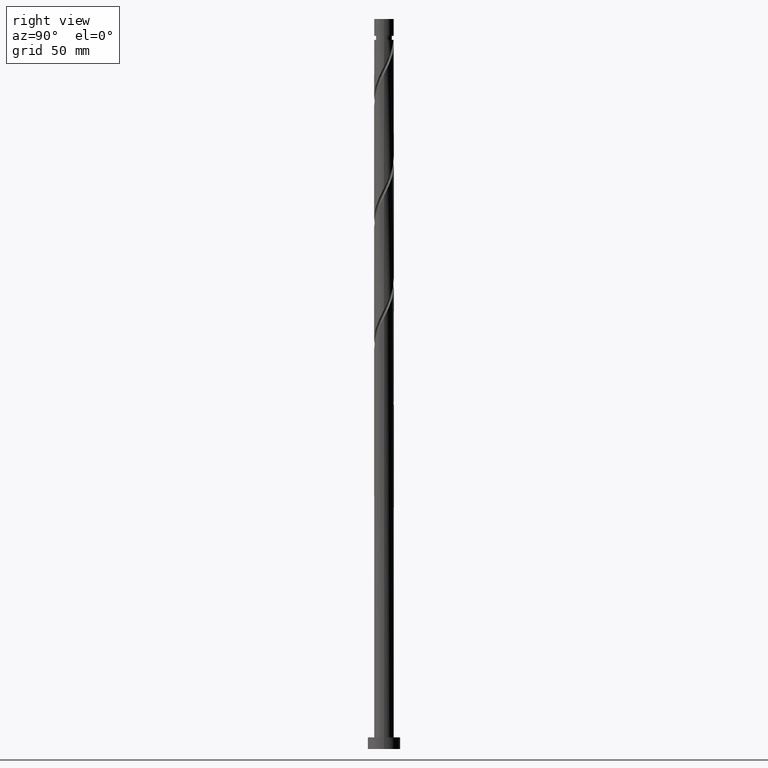
[diagram: clean part render]
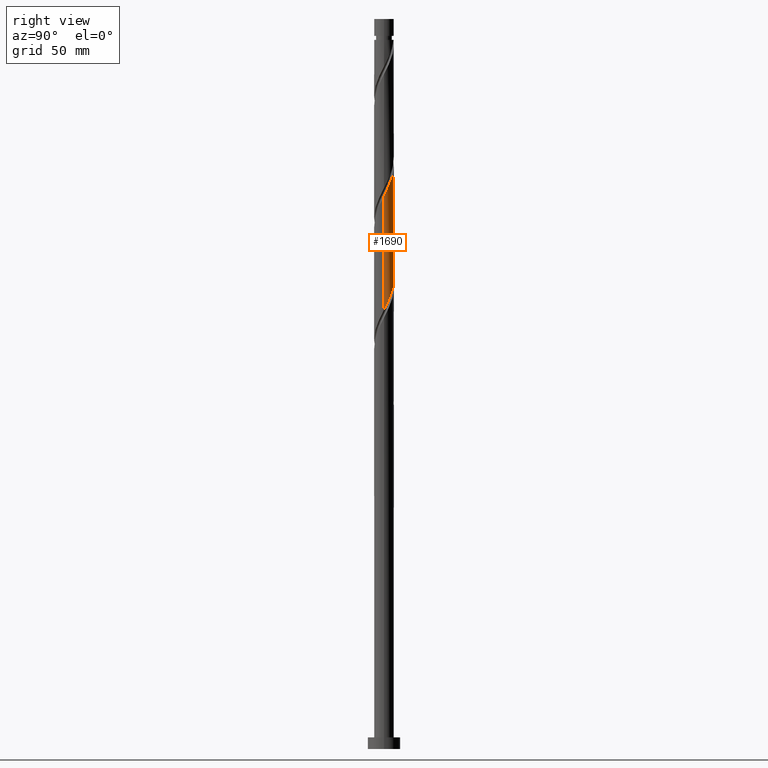
[diagram: same view with one face highlighted and labeled with its STEP entity id]
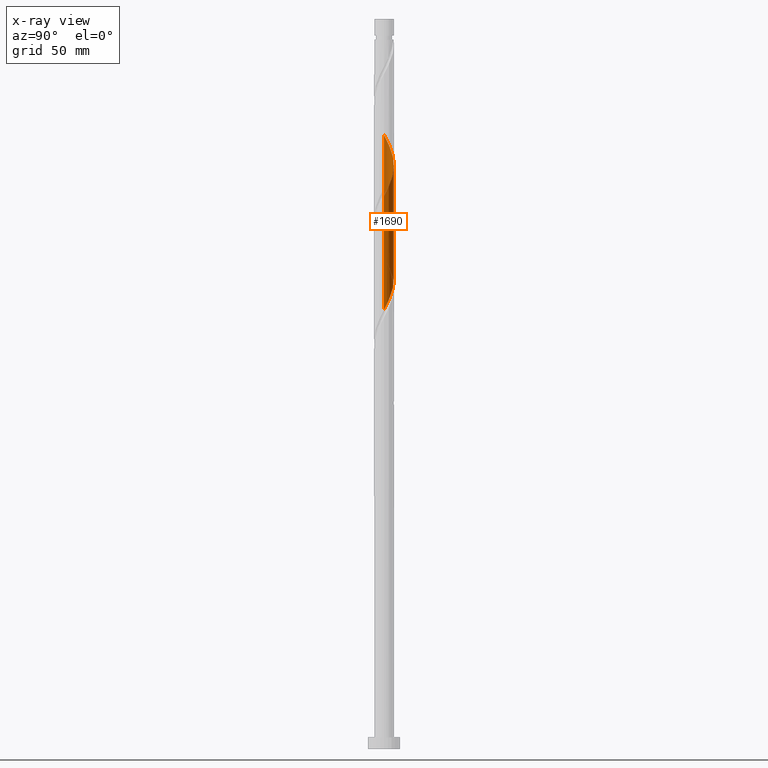
[diagram: x-ray of the same camera — body ghosted, the highlighted face saturated]
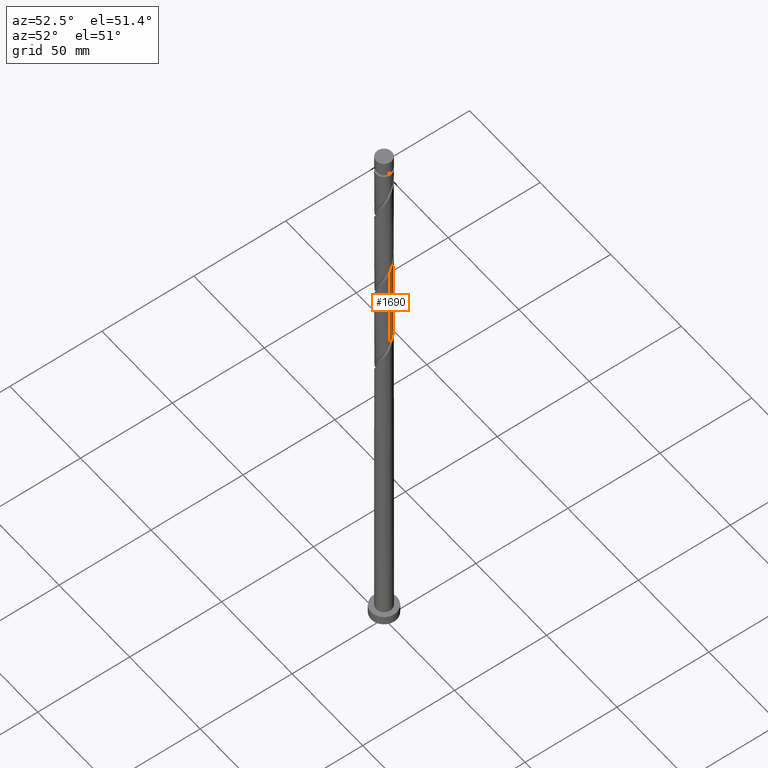
[diagram: same view with one face highlighted and labeled with its STEP entity id]
A machine part, right view. The second image highlights one B-rep face of the part: STEP entity #1690.
The next image is the same camera in x-ray: the body ghosted, the highlighted face saturated — about 0% of this face is hidden behind the body in this view.
A second angle (auxiliary view) of the same face is appended — the face is thin or edge-on in the first view.
In plain terms, the highlighted cylindrical surface (edge-blend (fillet) strip) has radius 4.25 mm, axis along (-0, -0, -1).
Its self-contained STEP definition (entity closure, byte-faithful):
#41 = CARTESIAN_POINT ( 'NONE',  ( -3.096113554533461265, 2.950574139356436643, 209.4312838819315346 ) ) ;
#52 = AXIS2_PLACEMENT_3D ( 'NONE', #372, #675, #245 ) ;
#61 = CARTESIAN_POINT ( 'NONE',  ( -3.675052036796095045, 2.187647005630862118, 211.3062838819315346 ) ) ;
#79 = EDGE_CURVE ( 'NONE', #930, #1701, #197, .T. ) ;
#142 = CARTESIAN_POINT ( 'NONE',  ( 4.250000000000008882, 0.4271410714851550661, 239.5325378829889473 ) ) ;
#155 = CARTESIAN_POINT ( 'NONE',  ( 3.385582795664786815, 2.569110572493653599, 244.1187838819314209 ) ) ;
#160 = CARTESIAN_POINT ( 'NONE',  ( -3.565547165210049663, 2.361923010402215528, 260.0562838819315061 ) ) ;
#168 = CARTESIAN_POINT ( 'NONE',  ( 3.096113554533469703, 2.950574139356442416, 245.0562838819315061 ) ) ;
#182 = CARTESIAN_POINT ( 'NONE',  ( -3.258060652283245151, 2.729018282467841949, 259.1187838819315061 ) ) ;
#190 = CARTESIAN_POINT ( 'NONE',  ( -2.729018282467836620, 3.258060652283240710, 208.4937838819314493 ) ) ;
#197 =( BOUNDED_CURVE ( )  B_SPLINE_CURVE ( 2, ( #802, #142, #867, #1910, #320, #446, #155, #168, #1762, #571, #753, #1055, #1022, #1803, #908, #870, #1506, #714, #1162, #1797, #1673, #900, #182, #160, #1477, #1344, #584, #1816, #461, #334, #1628 ),
 .UNSPECIFIED., .F., .T. ) 
 B_SPLINE_CURVE_WITH_KNOTS ( ( 3, 2, 2, 2, 2, 2, 2, 2, 2, 2, 2, 2, 2, 2, 2, 3 ),
 ( 0.4295303401299218615, 0.4375000000000000000, 0.4464285714285713969, 0.4553571428571429047, 0.4642857142857143016, 0.4732142857142856984, 0.4821428571428570953, 0.4910714285714286031, 0.5000000000000000000, 0.5089285714285713969, 0.5178571428571427937, 0.5267857142857143016, 0.5357142857142856984, 0.5446428571428572063, 0.5535714285714286031, 0.5545303401299224166 ),
 .UNSPECIFIED. ) 
 CURVE ( )  GEOMETRIC_REPRESENTATION_ITEM ( )  RATIONAL_B_SPLINE_CURVE ( ( 0.9079949616362108511, 0.9039886423360736778, 0.9090909090909405910, 0.9033747362666154634, 0.9090909090909405910, 0.9033747362666154634, 0.9090909090909405910, 0.9033747362666154634, 0.9090909090909405910, 0.9033747362666154634, 0.9090909090909405910, 0.9033747362666154634, 0.9090909090909405910, 0.9033747362666154634, 0.9090909090909405910, 0.9033747362666154634, 0.9090909090909405910, 0.9033747362666154634, 0.9090909090909405910, 0.9033747362666154634, 0.9090909090909405910, 0.9033747362666154634, 0.9090909090909405910, 0.9033747362666154634, 0.9090909090909405910, 0.9033747362666154634, 0.9090909090909405910, 0.9033747362666154634, 0.9090909090909405910, 0.9084770030214821546, 0.9079949616362104070 ) ) 
 REPRESENTATION_ITEM ( '' )  );
#200 = CARTESIAN_POINT ( 'NONE',  ( -3.385582795664779265, 2.569110572493650047, 210.3687838819314493 ) ) ;
#220 = CARTESIAN_POINT ( 'NONE',  ( 2.187647005630863006, 3.675052036796095045, 198.1812838819315061 ) ) ;
#245 = DIRECTION ( 'NONE',  ( -1.000000000000000000, 0.000000000000000000, 0.000000000000000000 ) ) ;
#320 = CARTESIAN_POINT ( 'NONE',  ( 3.872380050524500295, 1.751334560927728878, 242.2437838819314777 ) ) ;
#334 = CARTESIAN_POINT ( 'NONE',  ( -4.250000000000007105, 0.05113981295714054021, 264.8439041158003420 ) ) ;
#341 = ORIENTED_EDGE ( 'NONE', *, *, #706, .F. ) ;
#345 = CARTESIAN_POINT ( 'NONE',  ( 4.237246980153082099, 0.5809861647134085816, 190.6812838819315346 ) ) ;
#362 = VECTOR ( 'NONE', #403, 1000.000000000000000 ) ;
#363 = CARTESIAN_POINT ( 'NONE',  ( 3.783637966490850157, 1.935609397200007242, 193.4937838819314777 ) ) ;
#372 = CARTESIAN_POINT ( 'NONE',  ( 0.000000000000000000, 0.000000000000000000, 315.0000000000000000 ) ) ;
#374 = CARTESIAN_POINT ( 'NONE',  ( 4.250000000000000000, 5.204748896376250699E-16, 315.0000000000000000 ) ) ;
#381 = CARTESIAN_POINT ( 'NONE',  ( -4.250000000000007105, -6.044938276218046483E-16, 264.9442668040254603 ) ) ;
#403 = DIRECTION ( 'NONE',  ( -0.000000000000000000, -0.000000000000000000, -1.000000000000000000 ) ) ;
#422 = VECTOR ( 'NONE', #1459, 1000.000000000000000 ) ;
#446 = CARTESIAN_POINT ( 'NONE',  ( 3.675052036796103483, 2.187647005630865671, 243.1812838819314493 ) ) ;
#450 = CARTESIAN_POINT ( 'NONE',  ( -4.250000000000000000, 0.000000000000000000, 315.0000000000000000 ) ) ;
#461 = CARTESIAN_POINT ( 'NONE',  ( -4.248769457950102968, 0.1022648189283724418, 264.7437838819314493 ) ) ;
#485 = CARTESIAN_POINT ( 'NONE',  ( 0.8457393215406305842, 4.164999999999997371, 200.9937838819315061 ) ) ;
#494 = CARTESIAN_POINT ( 'NONE',  ( -2.361923010402210199, 3.565547165210043445, 207.5562838819315346 ) ) ;
#502 = CARTESIAN_POINT ( 'NONE',  ( -0.5809861647134095808, 4.237246980153082099, 203.8062838819315346 ) ) ;
#513 = CARTESIAN_POINT ( 'NONE',  ( -4.249999999999999112, 2.477678404573344532E-15, 215.7933009598375804 ) ) ;
#538 = EDGE_CURVE ( 'NONE', #1701, #1325, #1641, .T. ) ;
#571 = CARTESIAN_POINT ( 'NONE',  ( 2.361923010402216416, 3.565547165210048774, 246.9312838819315346 ) ) ;
#584 = CARTESIAN_POINT ( 'NONE',  ( -4.119487873962377478, 1.045140974355610819, 262.8687838819313924 ) ) ;
#610 = CARTESIAN_POINT ( 'NONE',  ( 4.249999999999999112, -3.015006251348286687E-15, 189.5433009598375520 ) ) ;
#621 = LINE ( 'NONE', #374, #362 ) ;
#651 = CARTESIAN_POINT ( 'NONE',  ( 3.258060652283240710, 2.729018282467836176, 195.3687838819314493 ) ) ;
#675 = DIRECTION ( 'NONE',  ( -0.000000000000000000, -0.000000000000000000, -1.000000000000000000 ) ) ;
#706 = EDGE_CURVE ( 'NONE', #1325, #1247, #1498, .T. ) ;
#714 = CARTESIAN_POINT ( 'NONE',  ( -1.315022116224593418, 4.069708064252899327, 254.4312838819314777 ) ) ;
#728 = EDGE_CURVE ( 'NONE', #930, #1247, #621, .T. ) ;
#753 = CARTESIAN_POINT ( 'NONE',  ( 1.935609397200013237, 3.783637966490855931, 247.8687838819315346 ) ) ;
#769 = CARTESIAN_POINT ( 'NONE',  ( 4.249999999999999112, 0.05113981295714459946, 189.6436636480626134 ) ) ;
#777 = CARTESIAN_POINT ( 'NONE',  ( 2.950574139356437975, 3.096113554533460821, 196.3062838819314493 ) ) ;
#802 = CARTESIAN_POINT ( 'NONE',  ( 4.250000000000006217, 6.194196011433306111E-16, 238.6942668040254034 ) ) ;
#867 = CARTESIAN_POINT ( 'NONE',  ( 4.165000000000006253, 0.8457393215406295850, 240.3687838819314493 ) ) ;
#870 = CARTESIAN_POINT ( 'NONE',  ( -0.3764565268566660294, 4.260291935747114955, 252.5562838819315346 ) ) ;
#900 = CARTESIAN_POINT ( 'NONE',  ( -2.950574139356442860, 3.096113554533469259, 258.1812838819315630 ) ) ;
#908 = CARTESIAN_POINT ( 'NONE',  ( 0.1022648189283734271, 4.248769457950102968, 251.6187838819315346 ) ) ;
#930 = VERTEX_POINT ( 'NONE', #1727 ) ;
#939 = CARTESIAN_POINT ( 'NONE',  ( -0.1022648189283712067, 4.248769457950094974, 202.8687838819315061 ) ) ;
#941 = EDGE_LOOP ( 'NONE', ( #1882, #1846, #341, #1778 ) ) ;
#953 = CARTESIAN_POINT ( 'NONE',  ( 4.249999999999999112, -3.015006251348286687E-15, 189.5433009598375804 ) ) ;
#1022 = CARTESIAN_POINT ( 'NONE',  ( 1.045140974355611485, 4.119487873962377478, 249.7437838819315346 ) ) ;
#1055 = CARTESIAN_POINT ( 'NONE',  ( 1.509295783997810947, 4.001728767771663087, 248.8062838819315061 ) ) ;
#1075 = CARTESIAN_POINT ( 'NONE',  ( 2.569110572493650047, 3.385582795664778821, 197.2437838819315061 ) ) ;
#1084 = CARTESIAN_POINT ( 'NONE',  ( 1.315022116224592752, 4.069708064252891333, 200.0562838819315346 ) ) ;
#1094 = CARTESIAN_POINT ( 'NONE',  ( 3.565547165210043445, 2.361923010402209311, 194.4312838819315061 ) ) ;
#1104 = CARTESIAN_POINT ( 'NONE',  ( 0.3764565268566672507, 4.260291935747106074, 201.9312838819314777 ) ) ;
#1131 = FACE_OUTER_BOUND ( 'NONE', #941, .T. ) ;
#1162 = CARTESIAN_POINT ( 'NONE',  ( -1.751334560927729544, 3.872380050524500295, 255.3687838819314493 ) ) ;
#1218 = CARTESIAN_POINT ( 'NONE',  ( 1.751334560927727990, 3.872380050524492301, 199.1187838819314777 ) ) ;
#1247 = VERTEX_POINT ( 'NONE', #610 ) ;
#1254 = CARTESIAN_POINT ( 'NONE',  ( -1.935609397200007686, 3.783637966490849713, 206.6187838819315061 ) ) ;
#1325 = VERTEX_POINT ( 'NONE', #1524 ) ;
#1344 = CARTESIAN_POINT ( 'NONE',  ( -4.001728767771663087, 1.509295783997810059, 261.9312838819315061 ) ) ;
#1363 = CARTESIAN_POINT ( 'NONE',  ( 4.119487873962370372, 1.045140974355606822, 191.6187838819314493 ) ) ;
#1371 = CARTESIAN_POINT ( 'NONE',  ( 4.248769457950094086, 0.1022648189283704850, 189.7437838819314777 ) ) ;
#1378 = CARTESIAN_POINT ( 'NONE',  ( -1.509295783997806506, 4.001728767771656869, 205.6812838819315061 ) ) ;
#1459 = DIRECTION ( 'NONE',  ( -0.000000000000000000, -0.000000000000000000, -1.000000000000000000 ) ) ;
#1477 = CARTESIAN_POINT ( 'NONE',  ( -3.783637966490855931, 1.935609397200012571, 260.9937838819315061 ) ) ;
#1498 =( BOUNDED_CURVE ( )  B_SPLINE_CURVE ( 2, ( #513, #1699, #1845, #1709, #1826, #61, #200, #41, #190, #494, #1254, #1378, #1856, #502, #939, #1104, #485, #1084, #1218, #220, #1075, #777, #651, #1094, #363, #1680, #1363, #345, #1371, #769, #953 ),
 .UNSPECIFIED., .F., .T. ) 
 B_SPLINE_CURVE_WITH_KNOTS ( ( 3, 2, 2, 2, 2, 2, 2, 2, 2, 2, 2, 2, 2, 2, 2, 3 ),
 ( 0.6795303401299220836, 0.6875000000000000000, 0.6964285714285713969, 0.7053571428571429047, 0.7142857142857143016, 0.7232142857142856984, 0.7321428571428570953, 0.7410714285714286031, 0.7500000000000000000, 0.7589285714285713969, 0.7678571428571429047, 0.7767857142857143016, 0.7857142857142856984, 0.7946428571428570953, 0.8035714285714286031, 0.8045303401299223056 ),
 .UNSPECIFIED. ) 
 CURVE ( )  GEOMETRIC_REPRESENTATION_ITEM ( )  RATIONAL_B_SPLINE_CURVE ( ( 0.9079949616362026354, 0.9039886423360656842, 0.9090909090909324863, 0.9033747362666074698, 0.9090909090909324863, 0.9033747362666074698, 0.9090909090909324863, 0.9033747362666074698, 0.9090909090909324863, 0.9033747362666074698, 0.9090909090909324863, 0.9033747362666074698, 0.9090909090909324863, 0.9033747362666074698, 0.9090909090909324863, 0.9033747362666074698, 0.9090909090909324863, 0.9033747362666074698, 0.9090909090909324863, 0.9033747362666074698, 0.9090909090909324863, 0.9033747362666074698, 0.9090909090909324863, 0.9033747362666074698, 0.9090909090909324863, 0.9033747362666074698, 0.9090909090909324863, 0.9033747362666074698, 0.9090909090909324863, 0.9084770030214740499, 0.9079949616362023024 ) ) 
 REPRESENTATION_ITEM ( '' )  );
#1506 = CARTESIAN_POINT ( 'NONE',  ( -0.8457393215406292519, 4.165000000000006253, 253.4937838819314493 ) ) ;
#1524 = CARTESIAN_POINT ( 'NONE',  ( -4.249999999999999112, 2.477678404573344532E-15, 215.7933009598375804 ) ) ;
#1628 = CARTESIAN_POINT ( 'NONE',  ( -4.250000000000007105, -6.044938276218046483E-16, 264.9442668040254603 ) ) ;
#1641 = LINE ( 'NONE', #450, #422 ) ;
#1673 = CARTESIAN_POINT ( 'NONE',  ( -2.569110572493654487, 3.385582795664785927, 257.2437838819313924 ) ) ;
#1680 = CARTESIAN_POINT ( 'NONE',  ( 4.001728767771656869, 1.509295783997805840, 192.5562838819314777 ) ) ;
#1690 = ADVANCED_FACE ( 'NONE', ( #1131 ), #1862, .T. ) ;
#1699 = CARTESIAN_POINT ( 'NONE',  ( -4.249999999999998224, 0.4271410714851677226, 214.9550298808739512 ) ) ;
#1701 = VERTEX_POINT ( 'NONE', #381 ) ;
#1709 = CARTESIAN_POINT ( 'NONE',  ( -4.069708064252891333, 1.315022116224591642, 213.1812838819314777 ) ) ;
#1727 = CARTESIAN_POINT ( 'NONE',  ( 4.250000000000006217, 6.194196011433306111E-16, 238.6942668040254034 ) ) ;
#1762 = CARTESIAN_POINT ( 'NONE',  ( 2.729018282467842393, 3.258060652283245151, 245.9937838819314777 ) ) ;
#1778 = ORIENTED_EDGE ( 'NONE', *, *, #538, .F. ) ;
#1797 = CARTESIAN_POINT ( 'NONE',  ( -2.187647005630866115, 3.675052036796103483, 256.3062838819315061 ) ) ;
#1803 = CARTESIAN_POINT ( 'NONE',  ( 0.5809861647134128004, 4.237246980153090981, 250.6812838819315061 ) ) ;
#1816 = CARTESIAN_POINT ( 'NONE',  ( -4.237246980153090981, 0.5809861647134119123, 263.8062838819315630 ) ) ;
#1826 = CARTESIAN_POINT ( 'NONE',  ( -3.872380050524492301, 1.751334560927727102, 212.2437838819314777 ) ) ;
#1845 = CARTESIAN_POINT ( 'NONE',  ( -4.164999999999997371, 0.8457393215406295850, 214.1187838819314493 ) ) ;
#1846 = ORIENTED_EDGE ( 'NONE', *, *, #728, .T. ) ;
#1856 = CARTESIAN_POINT ( 'NONE',  ( -1.045140974355608154, 4.119487873962370372, 204.7437838819314493 ) ) ;
#1862 = CYLINDRICAL_SURFACE ( 'NONE', #52, 4.250000000000000000 ) ;
#1882 = ORIENTED_EDGE ( 'NONE', *, *, #79, .F. ) ;
#1910 = CARTESIAN_POINT ( 'NONE',  ( 4.069708064252899327, 1.315022116224592752, 241.3062838819315061 ) ) ;